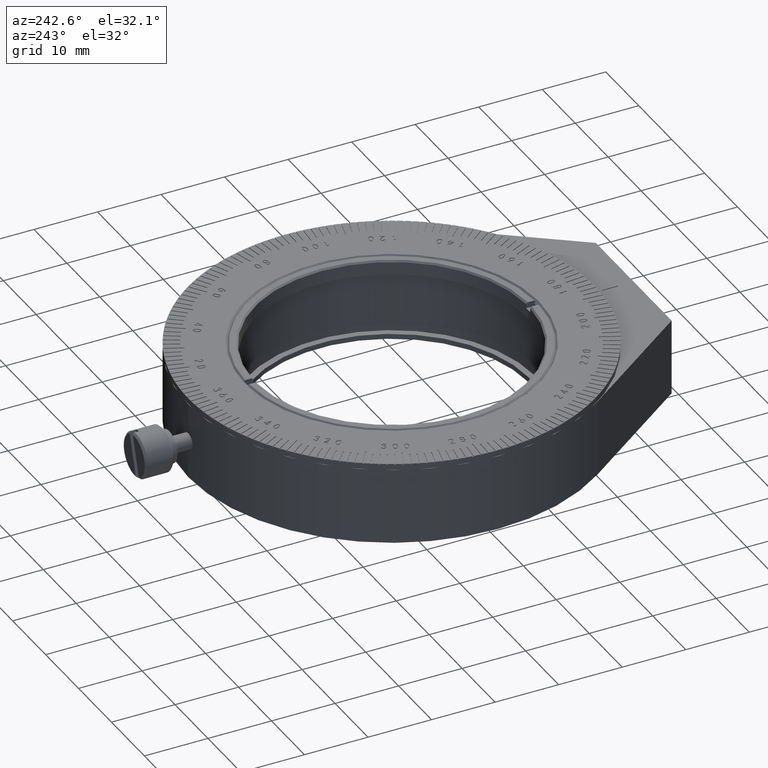
[diagram: clean part render]
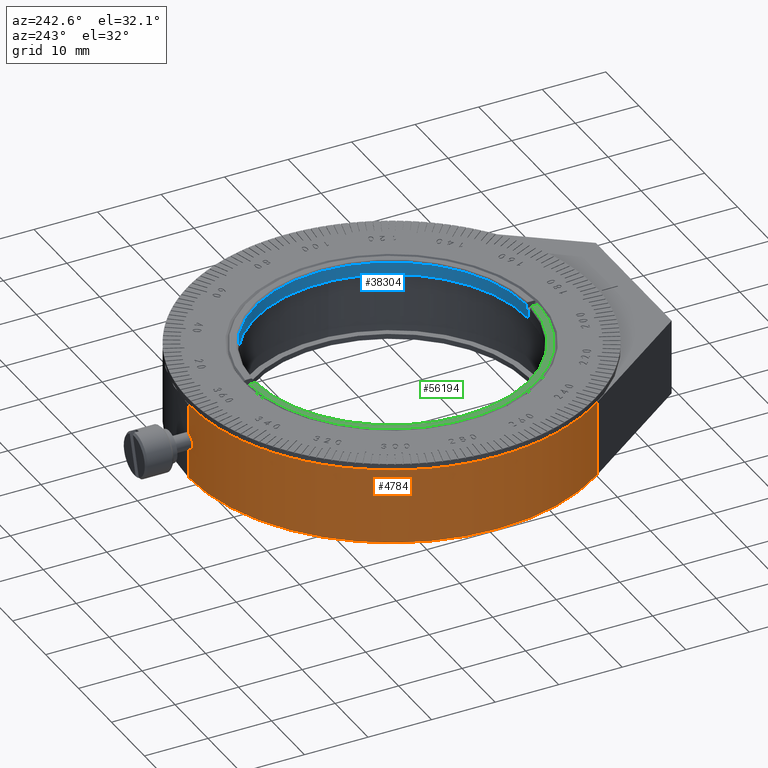
[diagram: same view with three faces highlighted in distinct colors, each labeled with its STEP entity id]
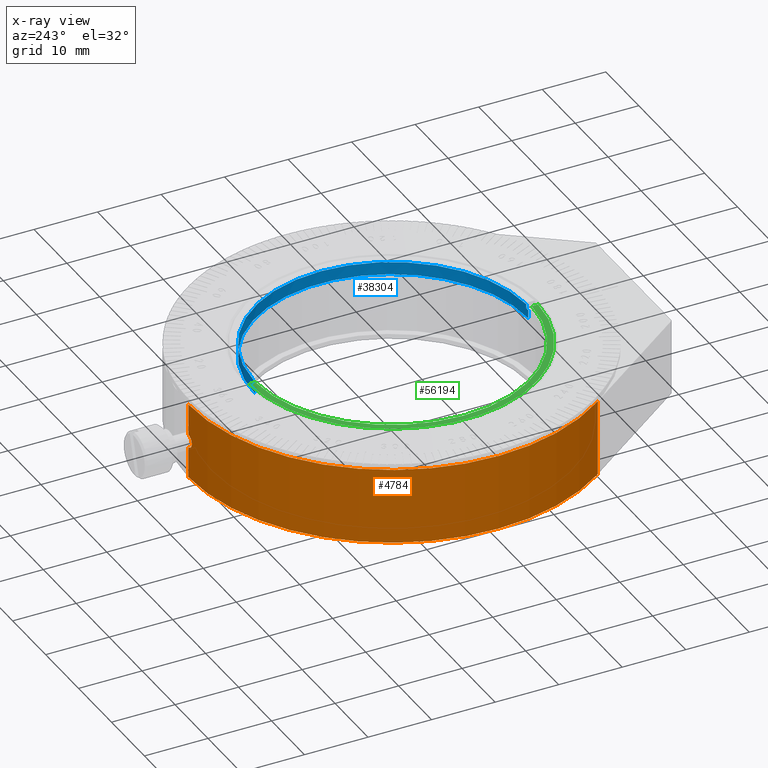
[diagram: x-ray of the same camera — body ghosted, the three highlighted faces saturated]
A machine part, auxiliary view with three faces highlighted in distinct colors.
The next image is the same camera in x-ray (body ghosted, the three faces saturated) — at least one of them is partly hidden behind the body in this view.
Their STEP definitions:

[orange] entity #4784 — the highlighted cylindrical surface (partial cylindrical patch) has radius 32 mm, axis along (-0, -0, -1).
#1155 = LINE ( 'NONE', #30274, #48758 ) ;
#2683 = LINE ( 'NONE', #61587, #30618 ) ;
#3401 = CARTESIAN_POINT ( 'NONE',  ( -2.073185623488710601E-23, 4.975000000000011191, -32.00000000000000000 ) ) ;
#4117 = VERTEX_POINT ( 'NONE', #27333 ) ;
#4150 = DIRECTION ( 'NONE',  ( 0.000000000000000000, 0.000000000000000000, 1.000000000000000000 ) ) ;
#4784 = ADVANCED_FACE ( 'NONE', ( #44917 ), #34051, .T. ) ;
#5981 = CARTESIAN_POINT ( 'NONE',  ( -25.64868815334285301, 0.000000000000000000, 19.13491039990964637 ) ) ;
#6520 = VERTEX_POINT ( 'NONE', #61572 ) ;
#7410 = CARTESIAN_POINT ( 'NONE',  ( 0.000000000000000000, 12.00000000000000000, -32.00000000000000000 ) ) ;
#8423 = DIRECTION ( 'NONE',  ( 0.000000000000000000, 0.000000000000000000, 1.000000000000000000 ) ) ;
#11801 = CARTESIAN_POINT ( 'NONE',  ( -1.024999999999988587, 6.000000000000000000, -31.98357977150149978 ) ) ;
#11931 = EDGE_CURVE ( 'NONE', #55126, #6520, #14276, .T. ) ;
#12945 = ORIENTED_EDGE ( 'NONE', *, *, #37177, .T. ) ;
#12985 = CARTESIAN_POINT ( 'NONE',  ( -0.8191477781079060660, 5.369511378973254700, -31.98965387269540273 ) ) ;
#13306 = CARTESIAN_POINT ( 'NONE',  ( -0.9983145897885553621, 5.731560923232811078, -31.98446530444758196 ) ) ;
#13458 = AXIS2_PLACEMENT_3D ( 'NONE', #58550, #48010, #4150 ) ;
#14083 = ORIENTED_EDGE ( 'NONE', *, *, #40798, .T. ) ;
#14276 = CIRCLE ( 'NONE', #59255, 32.00000000000000000 ) ;
#15550 = DIRECTION ( 'NONE',  ( -0.000000000000000000, -1.000000000000000000, -0.000000000000000000 ) ) ;
#16436 = CARTESIAN_POINT ( 'NONE',  ( -0.6299839241103109000, 6.819528999529530289, -31.99393804136357033 ) ) ;
#17799 = CARTESIAN_POINT ( 'NONE',  ( -0.1337507840765663758, 4.975000000000012079, -31.99999999999999289 ) ) ;
#18314 = EDGE_CURVE ( 'NONE', #43720, #57344, #44899, .T. ) ;
#21306 = VERTEX_POINT ( 'NONE', #5981 ) ;
#21887 = CARTESIAN_POINT ( 'NONE',  ( -1.024999999999988587, 6.270710872145041748, -31.98357977150150688 ) ) ;
#22921 = CARTESIAN_POINT ( 'NONE',  ( -1.024999999999988587, 5.864511675375928768, -31.98357977150149267 ) ) ;
#24709 = CIRCLE ( 'NONE', #13458, 32.00000000000000000 ) ;
#27011 = CARTESIAN_POINT ( 'NONE',  ( 0.000000000000000000, 12.00000000000000000, 0.000000000000000000 ) ) ;
#27333 = CARTESIAN_POINT ( 'NONE',  ( 0.000000000000000000, 0.000000000000000000, -32.00000000000000000 ) ) ;
#27941 = DIRECTION ( 'NONE',  ( 0.000000000000000000, 1.000000000000000000, 0.000000000000000000 ) ) ;
#28196 = ORIENTED_EDGE ( 'NONE', *, *, #18314, .T. ) ;
#30203 = CARTESIAN_POINT ( 'NONE',  ( -0.9137425367048692681, 6.535938130240230848, -31.98751129946823824 ) ) ;
#30274 = CARTESIAN_POINT ( 'NONE',  ( -25.64868815334285301, 12.00000000000000000, 19.13491039990964637 ) ) ;
#30618 = VECTOR ( 'NONE', #37256, 1000.000000000000000 ) ;
#31458 = DIRECTION ( 'NONE',  ( 0.000000000000000000, 0.000000000000000000, -1.000000000000000000 ) ) ;
#31787 = DIRECTION ( 'NONE',  ( -0.000000000000000000, -1.000000000000000000, -0.000000000000000000 ) ) ;
#32908 = EDGE_CURVE ( 'NONE', #6520, #21306, #1155, .T. ) ;
#33862 = VECTOR ( 'NONE', #56056, 1000.000000000000000 ) ;
#34051 = CYLINDRICAL_SURFACE ( 'NONE', #39149, 32.00000000000000000 ) ;
#35344 = CARTESIAN_POINT ( 'NONE',  ( -0.2680898452560820377, 6.998412664371071124, -31.99911807407104902 ) ) ;
#35405 = ORIENTED_EDGE ( 'NONE', *, *, #50972, .T. ) ;
#35468 = ORIENTED_EDGE ( 'NONE', *, *, #32908, .F. ) ;
#36616 = CARTESIAN_POINT ( 'NONE',  ( -0.1351325530123806962, 7.024999999999987921, -31.99999999999999289 ) ) ;
#37177 = EDGE_CURVE ( 'NONE', #55126, #38689, #2683, .T. ) ;
#37256 = DIRECTION ( 'NONE',  ( -0.000000000000000000, -1.000000000000000000, -0.000000000000000000 ) ) ;
#37646 = CARTESIAN_POINT ( 'NONE',  ( -0.6299031208860298436, 5.180401902197567132, -31.99393973919956125 ) ) ;
#38689 = VERTEX_POINT ( 'NONE', #46291 ) ;
#39149 = AXIS2_PLACEMENT_3D ( 'NONE', #40119, #31787, #31458 ) ;
#40119 = CARTESIAN_POINT ( 'NONE',  ( 0.000000000000000000, 12.00000000000000000, 0.000000000000000000 ) ) ;
#40798 = EDGE_CURVE ( 'NONE', #57344, #4117, #41650, .T. ) ;
#41009 = CARTESIAN_POINT ( 'NONE',  ( -2.073185623488710601E-23, 4.975000000000011191, -32.00000000000000000 ) ) ;
#41051 = EDGE_LOOP ( 'NONE', ( #45848, #12945, #35405, #28196, #14083, #57974, #35468 ) ) ;
#41650 = LINE ( 'NONE', #7410, #33862 ) ;
#41733 = EDGE_CURVE ( 'NONE', #4117, #21306, #24709, .T. ) ;
#42089 = CARTESIAN_POINT ( 'NONE',  ( 0.000000000000000000, 12.00000000000000000, -32.00000000000000000 ) ) ;
#43720 = VERTEX_POINT ( 'NONE', #11801 ) ;
#44899 = B_SPLINE_CURVE_WITH_KNOTS ( 'NONE', 3,
 ( #46952, #22921, #13306, #61676, #12985, #37646, #61047, #61981, #17799, #3401 ),
 .UNSPECIFIED., .F., .F.,
 ( 4, 2, 2, 2, 4 ),
 ( 0.000000000000000000, 0.0004006938046547772509, 0.0008013876093095545017, 0.001202081413964331807, 0.001602775218619109003 ),
 .UNSPECIFIED. ) ;
#44917 = FACE_OUTER_BOUND ( 'NONE', #41051, .T. ) ;
#45268 = CARTESIAN_POINT ( 'NONE',  ( -3.098645635708134372E-24, 7.024999999999988809, -32.00000000000000000 ) ) ;
#45848 = ORIENTED_EDGE ( 'NONE', *, *, #11931, .F. ) ;
#46291 = CARTESIAN_POINT ( 'NONE',  ( -3.098645635708134372E-24, 7.024999999999988809, -32.00000000000000000 ) ) ;
#46952 = CARTESIAN_POINT ( 'NONE',  ( -1.024999999999988587, 6.000000000000000000, -31.98357977150149978 ) ) ;
#48010 = DIRECTION ( 'NONE',  ( 0.000000000000000000, 1.000000000000000000, 0.000000000000000000 ) ) ;
#48758 = VECTOR ( 'NONE', #15550, 1000.000000000000000 ) ;
#49741 = CARTESIAN_POINT ( 'NONE',  ( -1.024999999999988587, 6.000000000000000000, -31.98357977150149978 ) ) ;
#50707 = CARTESIAN_POINT ( 'NONE',  ( -0.5165037300951546007, 6.895502043718360952, -31.99607247116850672 ) ) ;
#50972 = EDGE_CURVE ( 'NONE', #38689, #43720, #53170, .T. ) ;
#53170 = B_SPLINE_CURVE_WITH_KNOTS ( 'NONE', 3,
 ( #45268, #36616, #35344, #50707, #16436, #30203, #21887, #49741 ),
 .UNSPECIFIED., .F., .F.,
 ( 4, 2, 2, 4 ),
 ( 0.004807717154914630149, 0.005208017954345794780, 0.005608318753776959410, 0.006408920352639286069 ),
 .UNSPECIFIED. ) ;
#55126 = VERTEX_POINT ( 'NONE', #42089 ) ;
#56056 = DIRECTION ( 'NONE',  ( -0.000000000000000000, -1.000000000000000000, -0.000000000000000000 ) ) ;
#57344 = VERTEX_POINT ( 'NONE', #41009 ) ;
#57974 = ORIENTED_EDGE ( 'NONE', *, *, #41733, .T. ) ;
#58550 = CARTESIAN_POINT ( 'NONE',  ( 0.000000000000000000, 0.000000000000000000, 0.000000000000000000 ) ) ;
#59255 = AXIS2_PLACEMENT_3D ( 'NONE', #27011, #27941, #8423 ) ;
#61047 = CARTESIAN_POINT ( 'NONE',  ( -0.5154899519912358175, 5.104046827725703395, -31.99608568734342740 ) ) ;
#61572 = CARTESIAN_POINT ( 'NONE',  ( -25.64868815334285301, 12.00000000000000000, 19.13491039990964637 ) ) ;
#61587 = CARTESIAN_POINT ( 'NONE',  ( 0.000000000000000000, 12.00000000000000000, -32.00000000000000000 ) ) ;
#61676 = CARTESIAN_POINT ( 'NONE',  ( -0.8953483992481720000, 5.483238157287084746, -31.98751325244835542 ) ) ;
#61981 = CARTESIAN_POINT ( 'NONE',  ( -0.2686951707279833790, 5.001869305782173036, -31.99910986430176152 ) ) ;

[blue] entity #38304 — the highlighted cylindrical surface (partial cylindrical patch) has radius 21.5 mm, axis along (0, 0, 1).
#270 = VERTEX_POINT ( 'NONE', #12075 ) ;
#964 = VERTEX_POINT ( 'NONE', #40432 ) ;
#1160 = CARTESIAN_POINT ( 'NONE',  ( 0.000000000000000000, 0.000000000000000000, -0.9000000000000000222 ) ) ;
#1517 = AXIS2_PLACEMENT_3D ( 'NONE', #60794, #40946, #16913 ) ;
#1992 = CARTESIAN_POINT ( 'NONE',  ( -21.50000000000000000, 2.632990618166809235E-15, -2.250000000000000000 ) ) ;
#3011 = EDGE_CURVE ( 'NONE', #270, #43411, #59224, .T. ) ;
#3244 = FACE_OUTER_BOUND ( 'NONE', #27033, .T. ) ;
#3810 = ORIENTED_EDGE ( 'NONE', *, *, #3011, .F. ) ;
#4131 = ORIENTED_EDGE ( 'NONE', *, *, #21922, .T. ) ;
#5076 = VECTOR ( 'NONE', #9982, 1000.000000000000000 ) ;
#6820 = ORIENTED_EDGE ( 'NONE', *, *, #56698, .F. ) ;
#7231 = ORIENTED_EDGE ( 'NONE', *, *, #17552, .F. ) ;
#7447 = LINE ( 'NONE', #32090, #59136 ) ;
#7555 = CARTESIAN_POINT ( 'NONE',  ( 21.49162627629653954, -0.5999999999999998668, -0.9000000000000000222 ) ) ;
#7887 = AXIS2_PLACEMENT_3D ( 'NONE', #1160, #14605, #15874 ) ;
#8060 = DIRECTION ( 'NONE',  ( 0.000000000000000000, 0.000000000000000000, 1.000000000000000000 ) ) ;
#9982 = DIRECTION ( 'NONE',  ( -0.000000000000000000, -0.000000000000000000, -1.000000000000000000 ) ) ;
#10262 = VECTOR ( 'NONE', #55177, 1000.000000000000000 ) ;
#11818 = ORIENTED_EDGE ( 'NONE', *, *, #50988, .T. ) ;
#11949 = CARTESIAN_POINT ( 'NONE',  ( -21.49162627629653954, -0.5999999999999998668, -2.500000000000000000 ) ) ;
#12075 = CARTESIAN_POINT ( 'NONE',  ( 21.50000000000000000, 0.000000000000000000, -2.250000000000000000 ) ) ;
#12248 = AXIS2_PLACEMENT_3D ( 'NONE', #41988, #51294, #46483 ) ;
#12831 = CARTESIAN_POINT ( 'NONE',  ( 0.000000000000000000, 0.000000000000000000, -0.9000000000000000222 ) ) ;
#14605 = DIRECTION ( 'NONE',  ( 0.000000000000000000, -0.000000000000000000, -1.000000000000000000 ) ) ;
#14820 = ORIENTED_EDGE ( 'NONE', *, *, #26623, .T. ) ;
#15835 = EDGE_CURVE ( 'NONE', #35333, #47541, #62845, .T. ) ;
#15874 = DIRECTION ( 'NONE',  ( 1.000000000000000000, 4.973799150320701301E-14, 0.000000000000000000 ) ) ;
#16754 = LINE ( 'NONE', #11949, #10262 ) ;
#16795 = ORIENTED_EDGE ( 'NONE', *, *, #15835, .T. ) ;
#16913 = DIRECTION ( 'NONE',  ( 1.000000000000000000, 0.000000000000000000, 0.000000000000000000 ) ) ;
#17552 = EDGE_CURVE ( 'NONE', #43411, #56747, #23375, .T. ) ;
#18720 = CIRCLE ( 'NONE', #54500, 21.50000000000000000 ) ;
#19111 = CIRCLE ( 'NONE', #7887, 21.50000000000000000 ) ;
#21739 = CARTESIAN_POINT ( 'NONE',  ( 0.000000000000000000, 0.000000000000000000, -2.250000000000000000 ) ) ;
#21922 = EDGE_CURVE ( 'NONE', #47541, #56747, #48118, .T. ) ;
#22711 = VERTEX_POINT ( 'NONE', #1992 ) ;
#23375 = CIRCLE ( 'NONE', #46942, 21.50000000000000000 ) ;
#26623 = EDGE_CURVE ( 'NONE', #22711, #964, #7447, .T. ) ;
#27033 = EDGE_LOOP ( 'NONE', ( #56938, #14820, #6820, #11818, #16795, #4131, #7231, #3810 ) ) ;
#28489 = DIRECTION ( 'NONE',  ( 0.000000000000000000, -0.000000000000000000, -1.000000000000000000 ) ) ;
#29865 = VECTOR ( 'NONE', #58900, 1000.000000000000000 ) ;
#31496 = CARTESIAN_POINT ( 'NONE',  ( 21.50000000000000000, 0.000000000000000000, -0.9000000000000000222 ) ) ;
#32090 = CARTESIAN_POINT ( 'NONE',  ( -21.50000000000000000, 2.632990618166809235E-15, -2.500000000000000000 ) ) ;
#32488 = CARTESIAN_POINT ( 'NONE',  ( 21.49162627629653954, -0.5999999999999998668, -0.2499999999999966416 ) ) ;
#35333 = VERTEX_POINT ( 'NONE', #35916 ) ;
#35916 = CARTESIAN_POINT ( 'NONE',  ( -21.49162627629653954, -0.5999999999999998668, -0.2499999999999966416 ) ) ;
#36787 = DIRECTION ( 'NONE',  ( 1.000000000000000000, 0.000000000000000000, 0.000000000000000000 ) ) ;
#38304 = ADVANCED_FACE ( 'NONE', ( #3244 ), #56397, .F. ) ;
#40432 = CARTESIAN_POINT ( 'NONE',  ( -21.50000000000000000, 2.632990618166809235E-15, -0.9000000000000000222 ) ) ;
#40946 = DIRECTION ( 'NONE',  ( 0.000000000000000000, 0.000000000000000000, 1.000000000000000000 ) ) ;
#41988 = CARTESIAN_POINT ( 'NONE',  ( 0.000000000000000000, 0.000000000000000000, -2.500000000000000000 ) ) ;
#42463 = VERTEX_POINT ( 'NONE', #60149 ) ;
#43411 = VERTEX_POINT ( 'NONE', #31496 ) ;
#43677 = EDGE_CURVE ( 'NONE', #270, #22711, #18720, .T. ) ;
#45113 = DIRECTION ( 'NONE',  ( -0.000000000000000000, -0.000000000000000000, -1.000000000000000000 ) ) ;
#46483 = DIRECTION ( 'NONE',  ( 1.000000000000000000, 0.000000000000000000, 0.000000000000000000 ) ) ;
#46942 = AXIS2_PLACEMENT_3D ( 'NONE', #12831, #28489, #52222 ) ;
#47541 = VERTEX_POINT ( 'NONE', #32488 ) ;
#48118 = LINE ( 'NONE', #57396, #5076 ) ;
#49616 = CARTESIAN_POINT ( 'NONE',  ( 21.50000000000000000, 0.000000000000000000, -2.500000000000000000 ) ) ;
#50988 = EDGE_CURVE ( 'NONE', #42463, #35333, #16754, .T. ) ;
#51294 = DIRECTION ( 'NONE',  ( 0.000000000000000000, 0.000000000000000000, 1.000000000000000000 ) ) ;
#52222 = DIRECTION ( 'NONE',  ( 1.000000000000000000, 0.000000000000000000, 0.000000000000000000 ) ) ;
#54500 = AXIS2_PLACEMENT_3D ( 'NONE', #21739, #45113, #36787 ) ;
#55177 = DIRECTION ( 'NONE',  ( 0.000000000000000000, 0.000000000000000000, 1.000000000000000000 ) ) ;
#56397 = CYLINDRICAL_SURFACE ( 'NONE', #12248, 21.50000000000000000 ) ;
#56698 = EDGE_CURVE ( 'NONE', #42463, #964, #19111, .T. ) ;
#56747 = VERTEX_POINT ( 'NONE', #7555 ) ;
#56938 = ORIENTED_EDGE ( 'NONE', *, *, #43677, .T. ) ;
#57396 = CARTESIAN_POINT ( 'NONE',  ( 21.49162627629653954, -0.5999999999999998668, -2.500000000000000000 ) ) ;
#58900 = DIRECTION ( 'NONE',  ( 0.000000000000000000, 0.000000000000000000, 1.000000000000000000 ) ) ;
#59136 = VECTOR ( 'NONE', #8060, 1000.000000000000000 ) ;
#59224 = LINE ( 'NONE', #49616, #29865 ) ;
#60149 = CARTESIAN_POINT ( 'NONE',  ( -21.49162627629653954, -0.5999999999999998668, -0.9000000000000000222 ) ) ;
#60794 = CARTESIAN_POINT ( 'NONE',  ( 0.000000000000000000, 0.000000000000000000, -0.2499999999999967526 ) ) ;
#62845 = CIRCLE ( 'NONE', #1517, 21.50000000000000000 ) ;

[green] entity #56194 — the highlighted planar face has unit normal (0, 0, 1).
#46 = CARTESIAN_POINT ( 'NONE',  ( -22.74208653576009453, 0.6000000000000000888, 0.000000000000000000 ) ) ;
#497 = ORIENTED_EDGE ( 'NONE', *, *, #2037, .T. ) ;
#1272 = DIRECTION ( 'NONE',  ( 1.000000000000000000, 0.000000000000000000, 0.000000000000000000 ) ) ;
#1928 = VERTEX_POINT ( 'NONE', #32073 ) ;
#2037 = EDGE_CURVE ( 'NONE', #9478, #44502, #24706, .T. ) ;
#2646 = VERTEX_POINT ( 'NONE', #47893 ) ;
#5038 = DIRECTION ( 'NONE',  ( -0.000000000000000000, -0.000000000000000000, -1.000000000000000000 ) ) ;
#7848 = FACE_OUTER_BOUND ( 'NONE', #23322, .T. ) ;
#8777 = DIRECTION ( 'NONE',  ( 0.000000000000000000, 0.000000000000000000, 1.000000000000000000 ) ) ;
#9478 = VERTEX_POINT ( 'NONE', #20675 ) ;
#9820 = CARTESIAN_POINT ( 'NONE',  ( 0.000000000000000000, 0.000000000000000000, 0.000000000000000000 ) ) ;
#12061 = DIRECTION ( 'NONE',  ( -1.000000000000000000, -0.000000000000000000, -0.000000000000000000 ) ) ;
#16647 = ORIENTED_EDGE ( 'NONE', *, *, #19370, .F. ) ;
#17319 = CIRCLE ( 'NONE', #18315, 21.75000000000000000 ) ;
#17452 = CARTESIAN_POINT ( 'NONE',  ( 0.000000000000000000, 0.000000000000000000, 0.000000000000000000 ) ) ;
#17762 = PLANE ( 'NONE',  #57949 ) ;
#18315 = AXIS2_PLACEMENT_3D ( 'NONE', #9820, #5038, #62685 ) ;
#19370 = EDGE_CURVE ( 'NONE', #2646, #44502, #55925, .T. ) ;
#19988 = VECTOR ( 'NONE', #30058, 1000.000000000000000 ) ;
#20675 = CARTESIAN_POINT ( 'NONE',  ( 22.74208653576009453, 0.6000000000000000888, 0.000000000000000000 ) ) ;
#22734 = VECTOR ( 'NONE', #12061, 1000.000000000000000 ) ;
#23322 = EDGE_LOOP ( 'NONE', ( #44667, #497, #16647, #30468 ) ) ;
#24706 = CIRCLE ( 'NONE', #37030, 22.75000000000001421 ) ;
#30058 = DIRECTION ( 'NONE',  ( -1.000000000000000000, -0.000000000000000000, -0.000000000000000000 ) ) ;
#30468 = ORIENTED_EDGE ( 'NONE', *, *, #37678, .T. ) ;
#32073 = CARTESIAN_POINT ( 'NONE',  ( 21.74172256285136129, 0.6000000000000000888, 0.000000000000000000 ) ) ;
#34876 = LINE ( 'NONE', #54389, #19988 ) ;
#37030 = AXIS2_PLACEMENT_3D ( 'NONE', #49296, #39370, #1272 ) ;
#37304 = DIRECTION ( 'NONE',  ( 1.000000000000000000, 0.000000000000000000, -0.000000000000000000 ) ) ;
#37678 = EDGE_CURVE ( 'NONE', #2646, #1928, #17319, .T. ) ;
#39370 = DIRECTION ( 'NONE',  ( 0.000000000000000000, 0.000000000000000000, 1.000000000000000000 ) ) ;
#44502 = VERTEX_POINT ( 'NONE', #46 ) ;
#44667 = ORIENTED_EDGE ( 'NONE', *, *, #53362, .F. ) ;
#45068 = CARTESIAN_POINT ( 'NONE',  ( -50000.00000000001455, 0.6000000000000000888, 0.000000000000000000 ) ) ;
#47893 = CARTESIAN_POINT ( 'NONE',  ( -21.74172256285136129, 0.6000000000000000888, 0.000000000000000000 ) ) ;
#49296 = CARTESIAN_POINT ( 'NONE',  ( 0.000000000000000000, 0.000000000000000000, 0.000000000000000000 ) ) ;
#53362 = EDGE_CURVE ( 'NONE', #9478, #1928, #34876, .T. ) ;
#54389 = CARTESIAN_POINT ( 'NONE',  ( -50000.00000000001455, 0.6000000000000000888, 0.000000000000000000 ) ) ;
#55925 = LINE ( 'NONE', #45068, #22734 ) ;
#56194 = ADVANCED_FACE ( 'NONE', ( #7848 ), #17762, .T. ) ;
#57949 = AXIS2_PLACEMENT_3D ( 'NONE', #17452, #8777, #37304 ) ;
#62685 = DIRECTION ( 'NONE',  ( 1.000000000000000000, 0.000000000000000000, 0.000000000000000000 ) ) ;